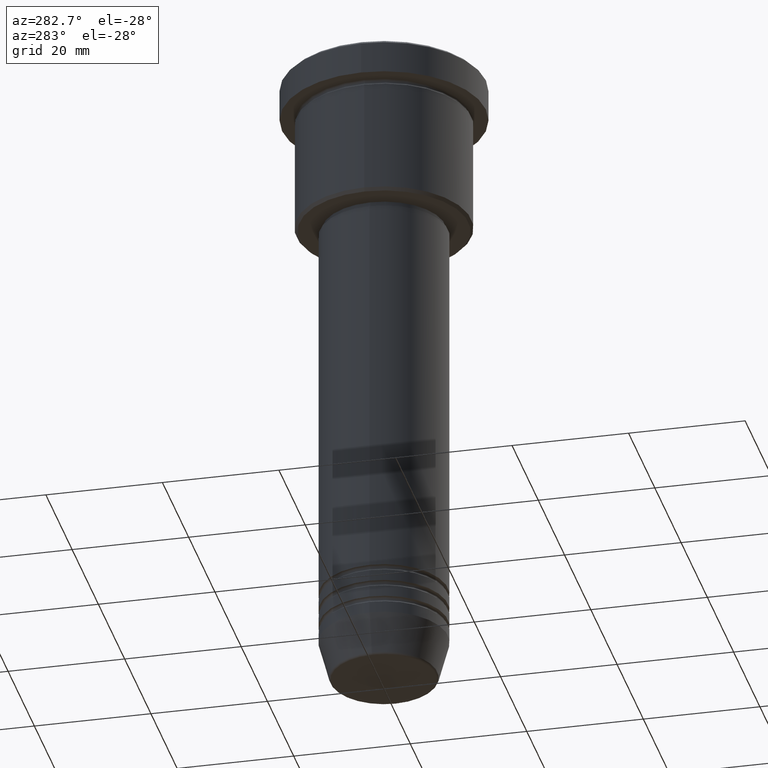
[diagram: clean part render]
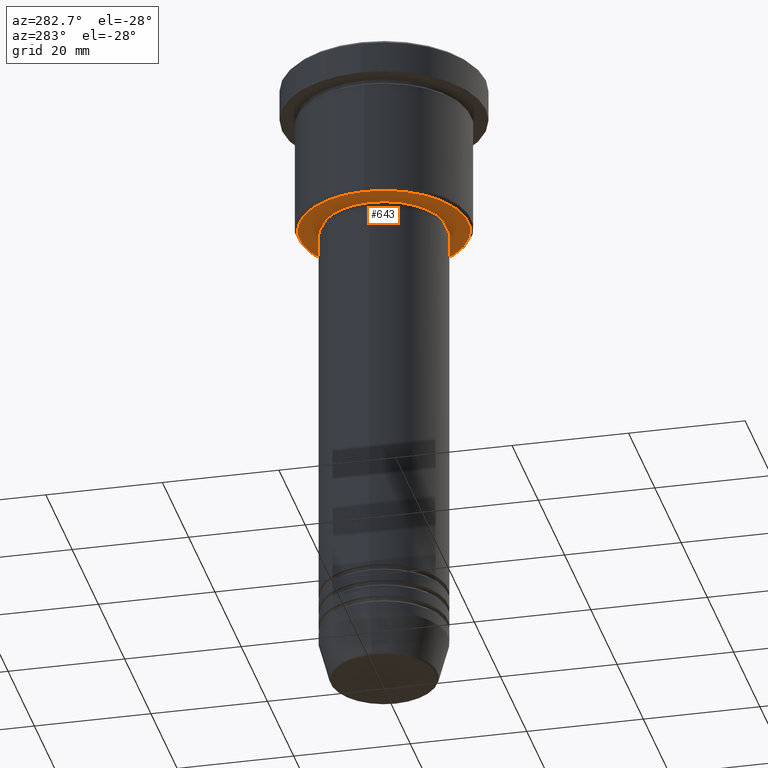
[diagram: same view with one face highlighted and labeled with its STEP entity id]
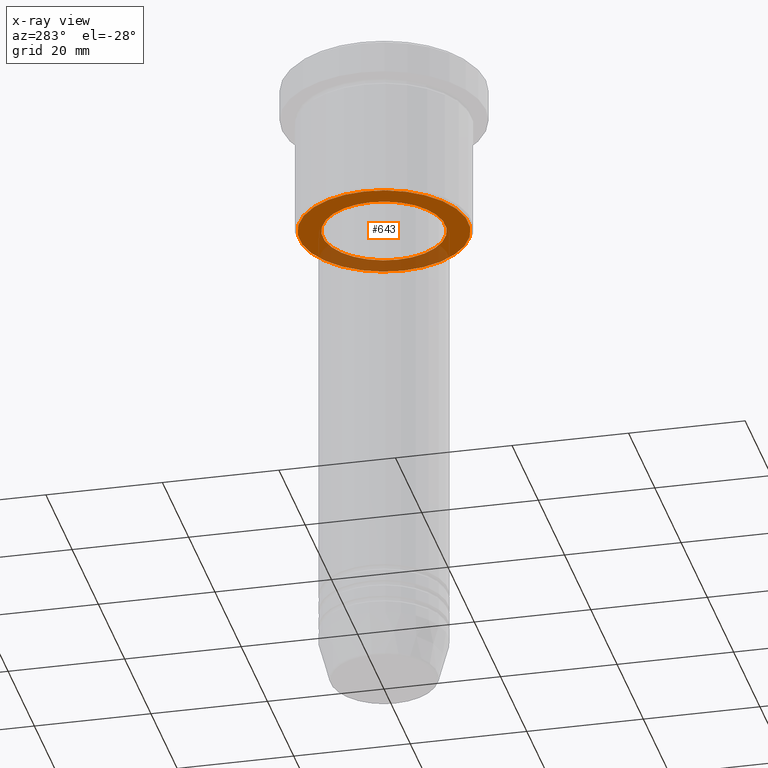
[diagram: x-ray of the same camera — body ghosted, the highlighted face saturated]
A machine part, auxiliary view. The second image highlights one B-rep face of the part: STEP entity #643.
The next image is the same camera in x-ray: the body ghosted, the highlighted face saturated — about 31% of this face is hidden behind the body in this view.
In plain terms, the highlighted planar face has unit normal (0, 0, -1).
Its self-contained STEP definition (entity closure, byte-faithful):
#25 = ORIENTED_EDGE ( 'NONE', *, *, #540, .T. ) ;
#79 = EDGE_CURVE ( 'NONE', #260, #340, #935, .T. ) ;
#137 = CARTESIAN_POINT ( 'NONE',  ( 0.000000000000000000, 0.000000000000000000, -27.00000000000000000 ) ) ;
#192 = AXIS2_PLACEMENT_3D ( 'NONE', #1074, #447, #912 ) ;
#260 = VERTEX_POINT ( 'NONE', #342 ) ;
#307 = AXIS2_PLACEMENT_3D ( 'NONE', #137, #502, #435 ) ;
#308 = CIRCLE ( 'NONE', #583, 14.49999999999999822 ) ;
#325 = DIRECTION ( 'NONE',  ( 0.000000000000000000, 0.000000000000000000, -1.000000000000000000 ) ) ;
#340 = VERTEX_POINT ( 'NONE', #1154 ) ;
#342 = CARTESIAN_POINT ( 'NONE',  ( 14.49999999999999822, 0.000000000000000000, -26.99999999999999645 ) ) ;
#348 = CIRCLE ( 'NONE', #307, 10.49999999999999822 ) ;
#363 = EDGE_CURVE ( 'NONE', #740, #665, #348, .T. ) ;
#435 = DIRECTION ( 'NONE',  ( 1.000000000000000000, 0.000000000000000000, 0.000000000000000000 ) ) ;
#444 = CARTESIAN_POINT ( 'NONE',  ( 0.000000000000000000, 0.000000000000000000, -26.99999999999999645 ) ) ;
#447 = DIRECTION ( 'NONE',  ( 0.000000000000000000, 0.000000000000000000, -1.000000000000000000 ) ) ;
#502 = DIRECTION ( 'NONE',  ( -0.000000000000000000, -0.000000000000000000, 1.000000000000000000 ) ) ;
#524 = ORIENTED_EDGE ( 'NONE', *, *, #79, .T. ) ;
#540 = EDGE_CURVE ( 'NONE', #340, #260, #308, .T. ) ;
#542 = EDGE_LOOP ( 'NONE', ( #524, #25 ) ) ;
#583 = AXIS2_PLACEMENT_3D ( 'NONE', #612, #325, #687 ) ;
#612 = CARTESIAN_POINT ( 'NONE',  ( 0.000000000000000000, 0.000000000000000000, -26.99999999999999645 ) ) ;
#617 = FACE_OUTER_BOUND ( 'NONE', #542, .T. ) ;
#631 = EDGE_CURVE ( 'NONE', #665, #740, #938, .T. ) ;
#642 = DIRECTION ( 'NONE',  ( -0.000000000000000000, -0.000000000000000000, 1.000000000000000000 ) ) ;
#643 = ADVANCED_FACE ( 'NONE', ( #617, #810 ), #1002, .T. ) ;
#651 = CARTESIAN_POINT ( 'NONE',  ( 10.49999999999999822, 0.000000000000000000, -27.00000000000000000 ) ) ;
#663 = DIRECTION ( 'NONE',  ( 0.000000000000000000, 0.000000000000000000, -1.000000000000000000 ) ) ;
#665 = VERTEX_POINT ( 'NONE', #718 ) ;
#687 = DIRECTION ( 'NONE',  ( -1.000000000000000000, 0.000000000000000000, 0.000000000000000000 ) ) ;
#711 = CARTESIAN_POINT ( 'NONE',  ( 0.000000000000000000, 0.000000000000000000, -27.00000000000000000 ) ) ;
#718 = CARTESIAN_POINT ( 'NONE',  ( -10.49999999999999822, 1.285879139104720633E-15, -27.00000000000000000 ) ) ;
#740 = VERTEX_POINT ( 'NONE', #651 ) ;
#753 = EDGE_LOOP ( 'NONE', ( #830, #887 ) ) ;
#810 = FACE_BOUND ( 'NONE', #753, .T. ) ;
#830 = ORIENTED_EDGE ( 'NONE', *, *, #363, .T. ) ;
#854 = DIRECTION ( 'NONE',  ( -1.000000000000000000, 0.000000000000000000, 0.000000000000000000 ) ) ;
#887 = ORIENTED_EDGE ( 'NONE', *, *, #631, .T. ) ;
#912 = DIRECTION ( 'NONE',  ( -1.000000000000000000, 0.000000000000000000, -0.000000000000000000 ) ) ;
#935 = CIRCLE ( 'NONE', #1104, 14.49999999999999822 ) ;
#938 = CIRCLE ( 'NONE', #1068, 10.49999999999999822 ) ;
#1002 = PLANE ( 'NONE',  #192 ) ;
#1007 = DIRECTION ( 'NONE',  ( 1.000000000000000000, 0.000000000000000000, 0.000000000000000000 ) ) ;
#1068 = AXIS2_PLACEMENT_3D ( 'NONE', #711, #642, #1007 ) ;
#1074 = CARTESIAN_POINT ( 'NONE',  ( 0.000000000000000000, 15.00000000000000000, -26.99999999999999645 ) ) ;
#1104 = AXIS2_PLACEMENT_3D ( 'NONE', #444, #663, #854 ) ;
#1154 = CARTESIAN_POINT ( 'NONE',  ( -14.49999999999999822, 1.806354028742345802E-15, -26.99999999999999645 ) ) ;